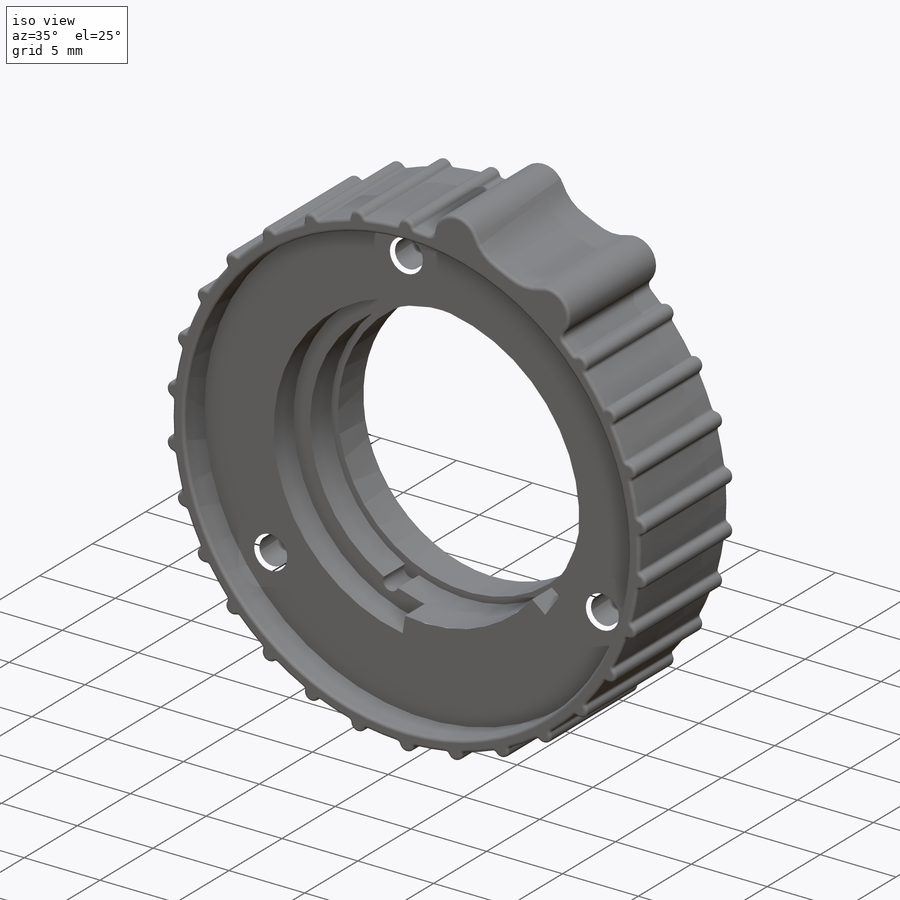
[diagram: iso view]
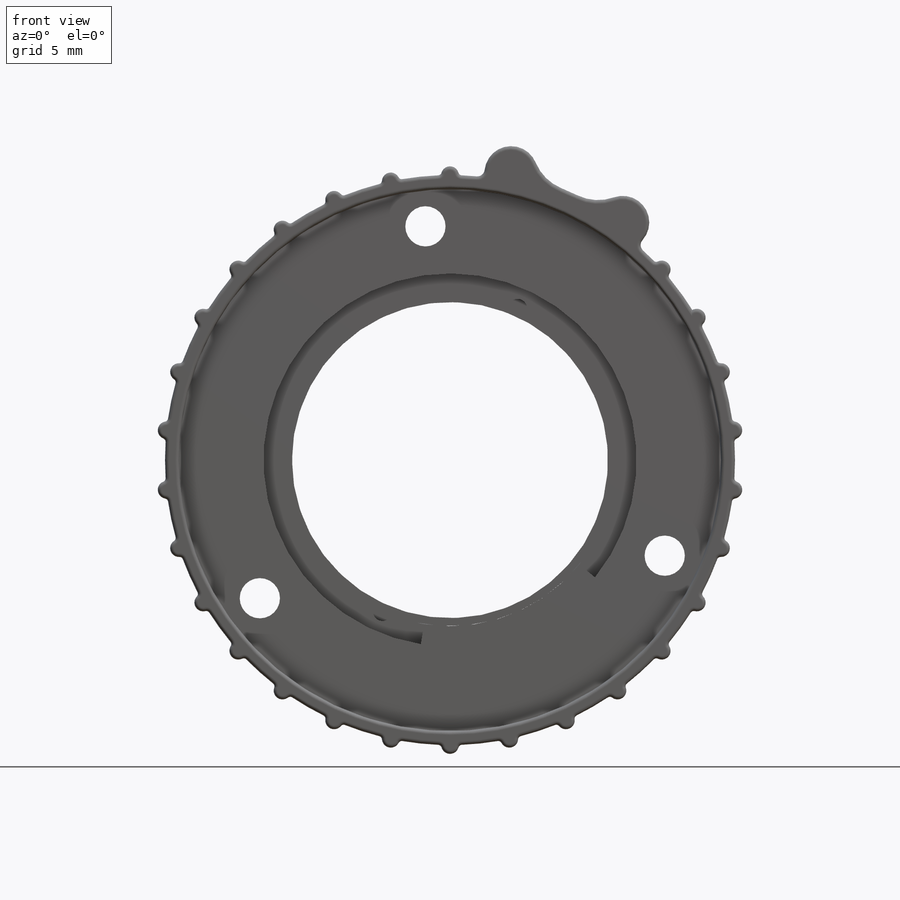
[diagram: front view]
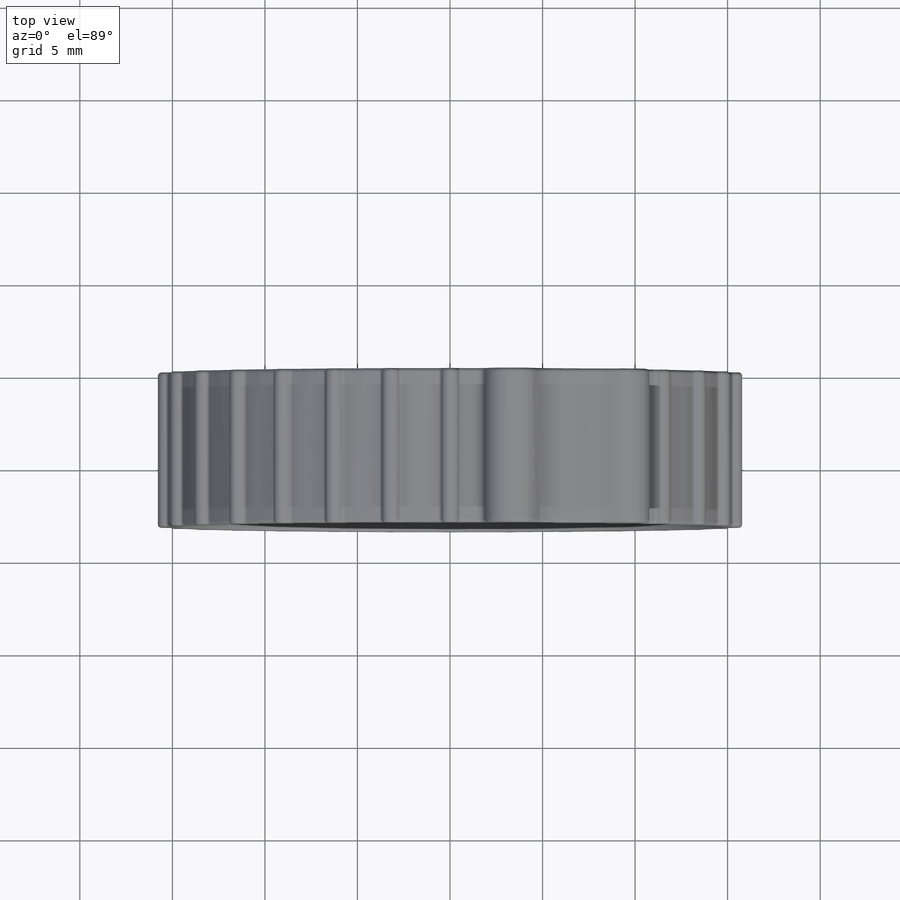
[diagram: top view]
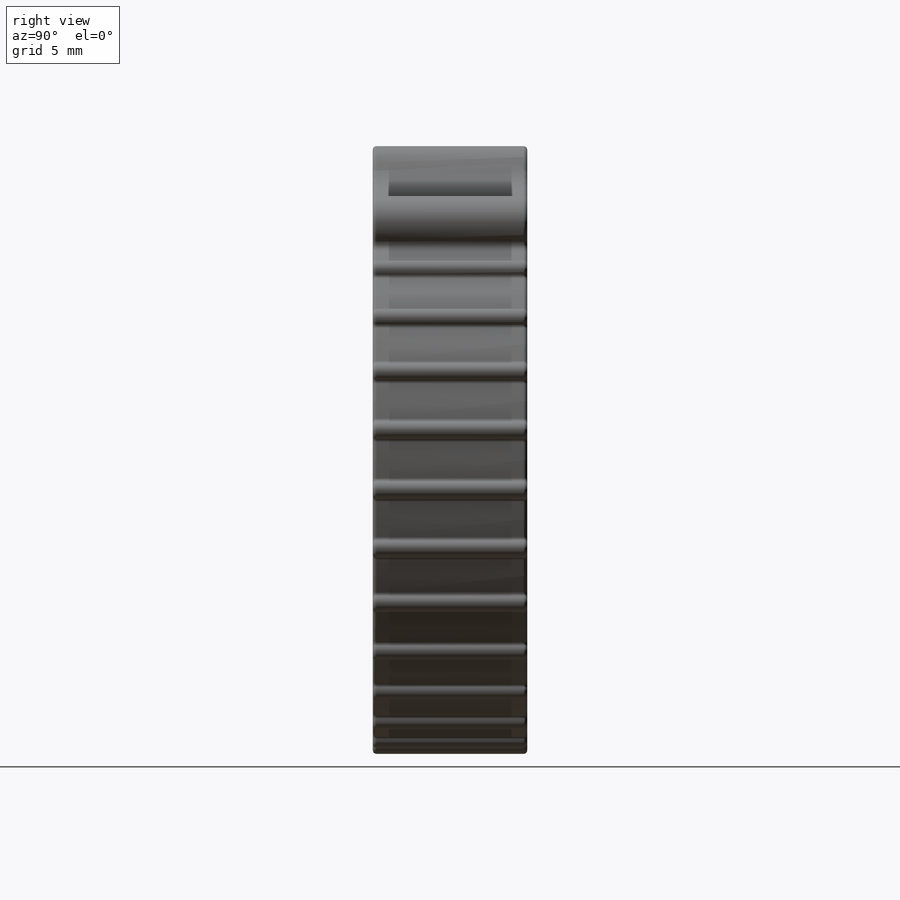
[diagram: right view]
SOLIDWORKS PART (.sldprt)
format: sldprt  version: not decoded by parser v0  size: 1,355,776 bytes
history: native  units: mm
features: sketch x10, fillet x5, cut_extrude x5, thread x3, extrude x2, material x1, hole x1 (+16 scaffold rows collapsed)
feature tree (43):
  scaffold x16  (default folders/planes/origin — collapsed)
  material  "Material <not specified>"
  sketch  "Sketch1"  dims[D1=31.75mm D2=30.7975mm]
  extrude  "Extrude1"  Depth=8.3439mm
  sketch  "Sketch2"  dims[c1.D1=~0.198437mm c1.D3=~0.198437mm c1.D5=34.6075mm c1.D2=15.875mm c2.D2=6.0deg c2.D4=~15.39875mm c3.D4=6.0deg c3.D2=1.905mm]
  extrude  "Extrude2"  [1 undecoded]
  fillet  "Fillet1"  Radius=2.54mm
  fillet  "Fillet2"  Radius=0.396875mm
  fillet  "Fillet3"  Radius=0.198437mm
  sketch  "Sketch3"  dims[D1=29.2862mm]
  cut_extrude  "Extrude3"  Depth=1.9558mm
  sketch  "Sketch4"  dims[D1=17.0815mm]
  cut_extrude  "Extrude4"  [1 undecoded]
  sketch  "Sketch6"  dims[D1=17.9451mm]
  cut_extrude  "Extrude5"  [1 undecoded]
  sketch  "Sketch7"  dims[c1.D1=20.1549mm c1.D2=~8.243986mm c2.D2=45.0deg c2.D3=~9.40839mm c3.D3=30.0deg c3.D4=~9.40839mm c4.D4=30.0deg]
  cut_extrude  "Extrude6"  Depth=1.8542mm
  sketch  "Sketch8"  dims[c1.D3=25.4mm c1.D4=15.24mm c1.D1=~1.609608mm c2.D1=120.0deg c2.D2=~12.019767mm c3.D2=120.0deg]
  sketch  "Sketch12"  dims[D1=0.508mm]
  cut_extrude  "Extrude7"  [1 undecoded]
  hole  "#2-56 Tapped Hole1"  Diameter=1.778mm Depth=8.3439mm
  sketch  "3DSketch2"
  sketch  "Sketch11"  dims[hole-wizard template sketch: 60 standard entries collapsed; hole parameters kept: c18.Thru Tap Drill Depth=8.3439mm]
  thread  "Hole Thread1"  Diameter=2.1844mm  [1 undecoded]
  thread  "Hole Thread2"  Diameter=2.1844mm  [1 undecoded]
  thread  "Hole Thread3"  Diameter=2.1844mm  [1 undecoded]
  fillet  "Fillet4"  Radius=0.198437mm
  fillet  "Fillet5"  Radius=0.198437mm
decode coverage: 21 of 26 modeling features carry decoded parameters
note: ~ marks probable driven/reference dimensions
note: 7 parameter values undecoded
summary: no parameter record found for 4 features
note: suppression state not decoded; provenance and decode notes live in map.json
